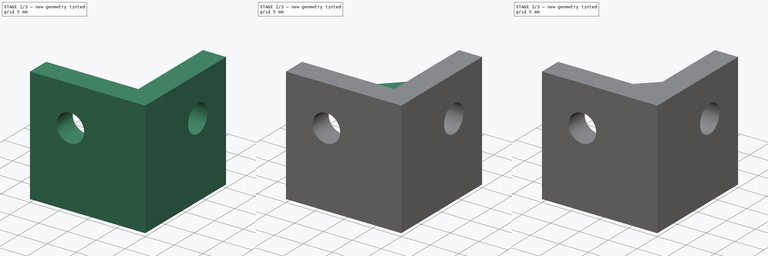
[diagram: build sequence overview — one tinted view per stage of 3, left to right]
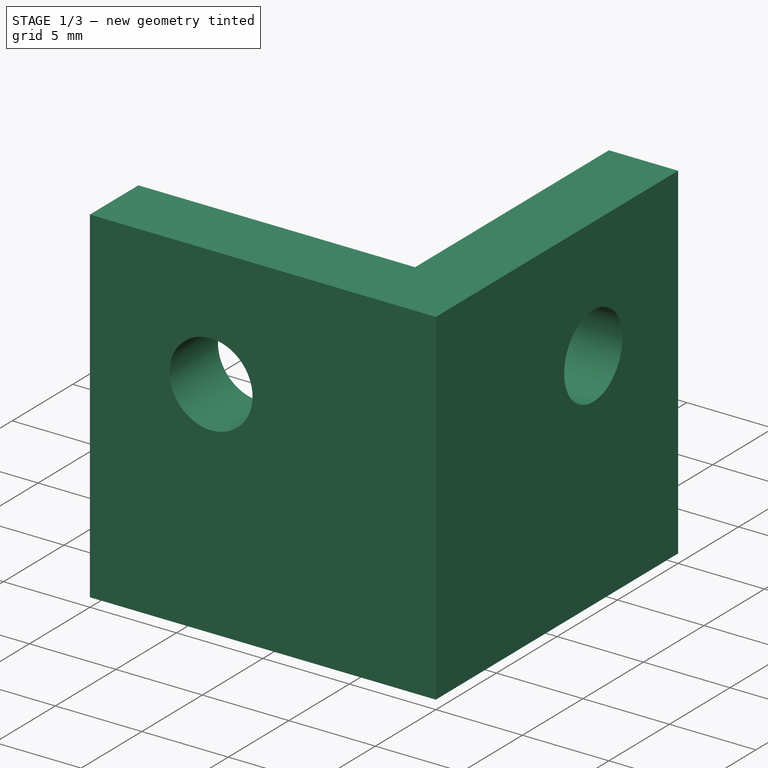
[diagram: stage 1 of 3 — iso view after this stage's code; geometry added in this stage tinted green]
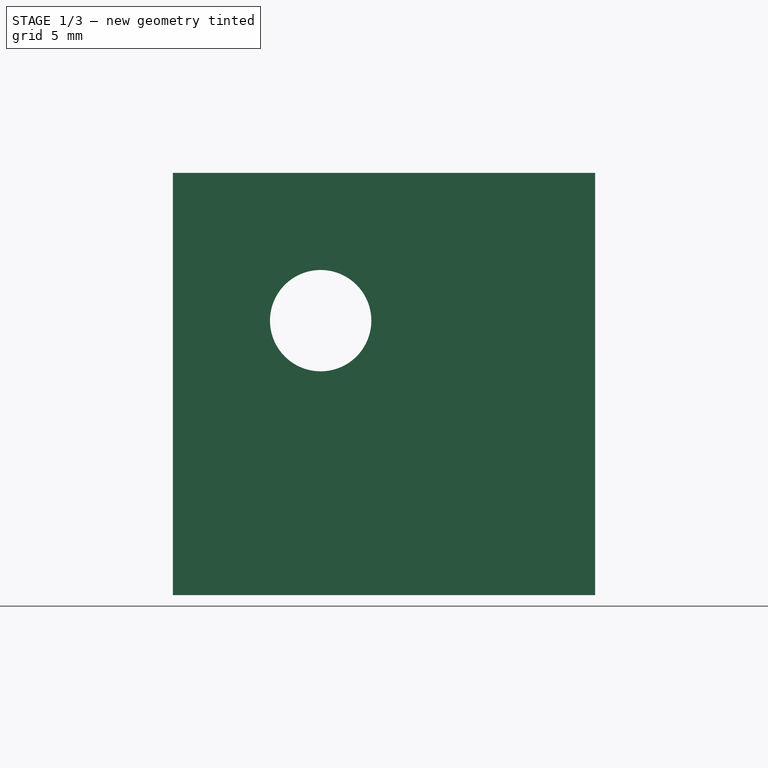
[diagram: stage 1 of 3 — front view after this stage's code; geometry added in this stage tinted green]
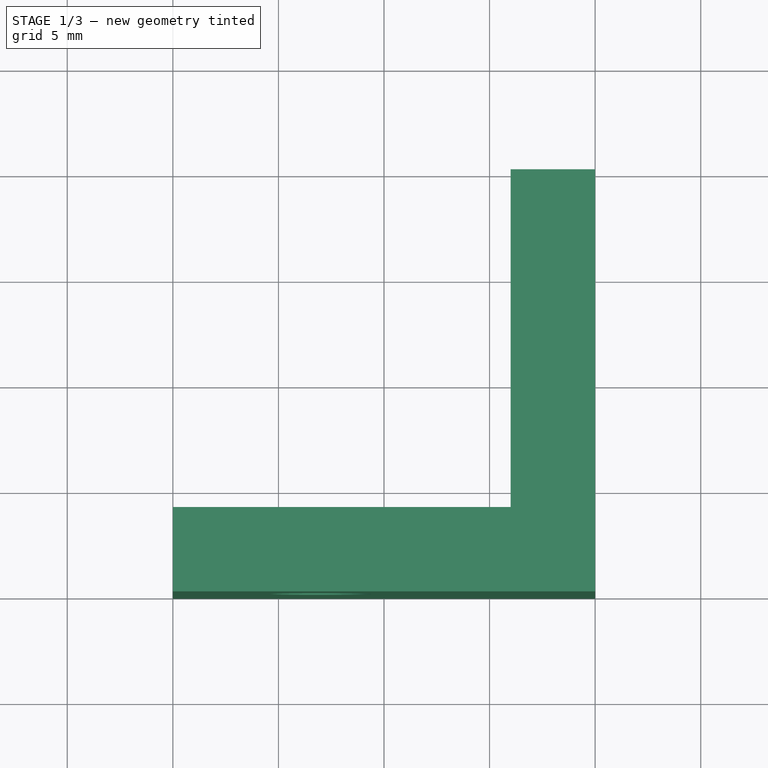
[diagram: stage 1 of 3 — top view after this stage's code; geometry added in this stage tinted green]
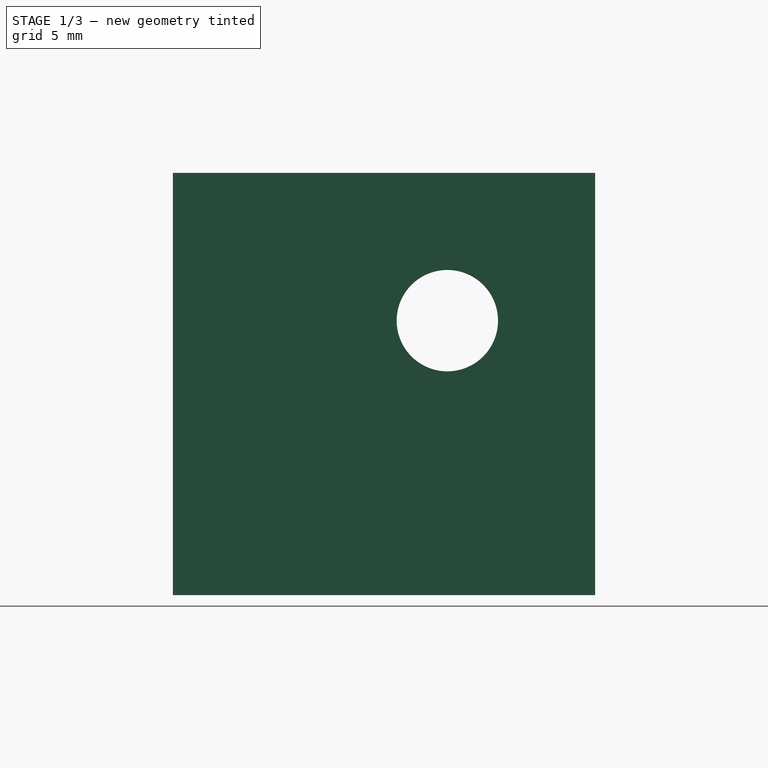
[diagram: stage 1 of 3 — right view after this stage's code; geometry added in this stage tinted green]
FCSTD DOCUMENT  (FreeCAD 0.16R6706 (Git))
Label: Cantoneira Quina
License: All rights reserved
LicenseURL: http://en.wikipedia.org/wiki/All_rights_reserved
objects: Sketcher::SketchObject×3, PartDesign::Pad×3, PartDesign::Chamfer×3, Part::MultiFuse×1
note: 13 computed .brp shape members not serialized (recipe doc carries the construction recipe); baked Part::Feature solids carry a one-line shape summary decoded from their .brp

FEATURE [Sketcher::SketchObject] Sketch001  label="Base001"
  Placement = pos=(0,4,0) rot=(1,0,0;1.5708rad)
  sketch-geometry (5):
    g0: LineSegment StartX=-20 StartY=20 StartZ=0 EndX=0 EndY=20 EndZ=0
    g1: LineSegment StartX=0 StartY=20 StartZ=0 EndX=0 EndY=0 EndZ=0
    g2: LineSegment StartX=0 StartY=0 StartZ=0 EndX=-20 EndY=0 EndZ=0
    g3: LineSegment StartX=-20 StartY=0 StartZ=0 EndX=-20 EndY=20 EndZ=0
    g4: Circle CenterX=-13 CenterY=13 CenterZ=0 NormalX=0 NormalY=0 NormalZ=1 Radius=2.4
  constraints (14):
    c: Coincident(g0,g1)
    c: Coincident(g1,g2)
    c: Coincident(g2,g3)
    c: Horizontal(g2)
    c: Horizontal(g0)
    c: Vertical(g1)
    c: Vertical(g3)
    c: DistanceX(g2,g2) = 20
    c: Equal(g2,g1)
    c: Radius(g4) = 2.4
    c: Coincident(g1,g-1)
    c: Coincident(g3,g0)
    c: DistanceY(g4,g0) = 7
    c: DistanceX(g0,g4) = 7
FEATURE [PartDesign::Pad] Pad001
  Length = 4
  Length2 = 100
  Placement = pos=(0,4,0) rot=(1,0,0;1.5708rad)
  Sketch = -> Sketch001
  Type = 0
FEATURE [Sketcher::SketchObject] Sketch002  label="Base002"
  Placement = pos=(-4,0,0) rot=(0.57735,0.57735,0.57735;2.0944rad)
  sketch-geometry (5):
    g0: LineSegment StartX=0 StartY=20 StartZ=0 EndX=20 EndY=20 EndZ=0
    g1: LineSegment StartX=20 StartY=20 StartZ=0 EndX=20 EndY=0 EndZ=0
    g2: LineSegment StartX=20 StartY=0 StartZ=0 EndX=0 EndY=0 EndZ=0
    g3: LineSegment StartX=0 StartY=0 StartZ=0 EndX=0 EndY=20 EndZ=0
    g4: Circle CenterX=13 CenterY=13 CenterZ=0 NormalX=0 NormalY=0 NormalZ=1 Radius=2.4
  constraints (14):
    c: Coincident(g0,g1)
    c: Coincident(g1,g2)
    c: Coincident(g2,g3)
    c: Horizontal(g2)
    c: Horizontal(g0)
    c: Vertical(g1)
    c: Vertical(g3)
    c: DistanceX(g2,g2) = 20
    c: Equal(g2,g1)
    c: Radius(g4) = 2.4
    c: Coincident(g3,g0)
    c: DistanceY(g4,g0) = 7
    c: DistanceX(g4,g0) = 7
    c: Coincident(g2,g-1)
FEATURE [PartDesign::Pad] Pad002
  Length = 4
  Length2 = 100
  Placement = pos=(-4,0,0) rot=(0.57735,0.57735,0.57735;2.0944rad)
  Sketch = -> Sketch002
  Type = 0
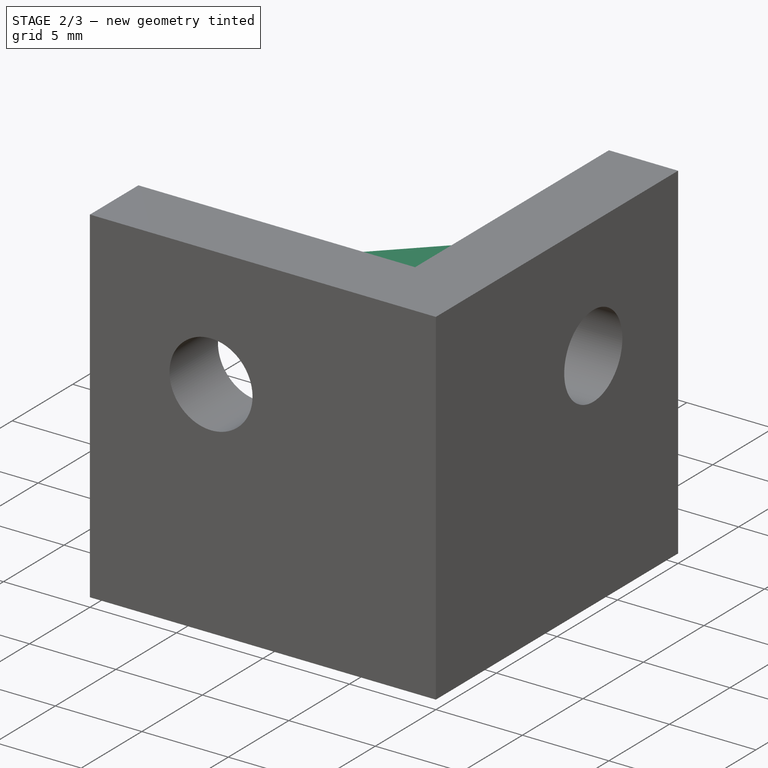
[diagram: stage 2 of 3 — iso view after this stage's code; geometry added in this stage tinted green]
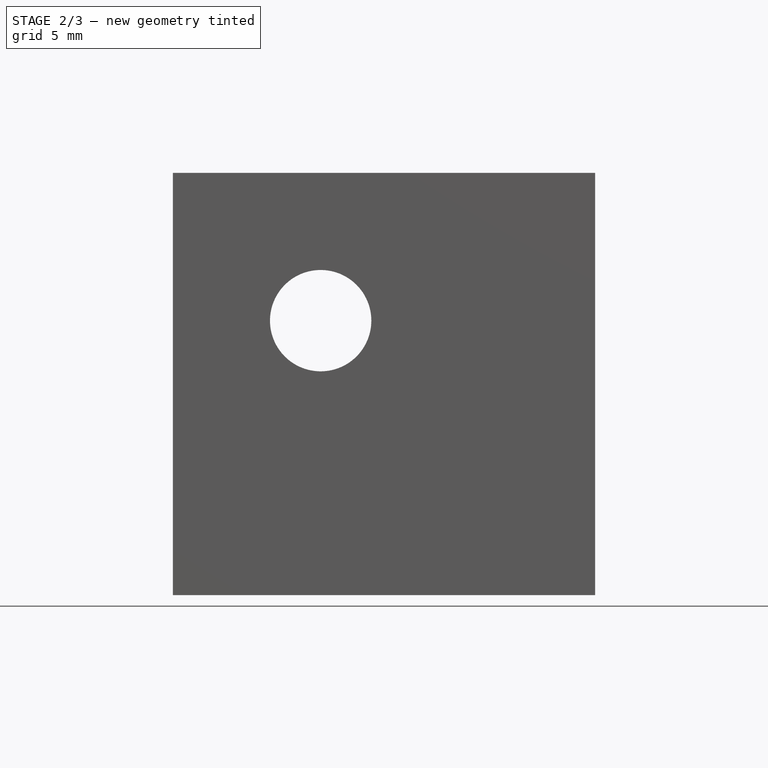
[diagram: stage 2 of 3 — front view after this stage's code; geometry added in this stage tinted green]
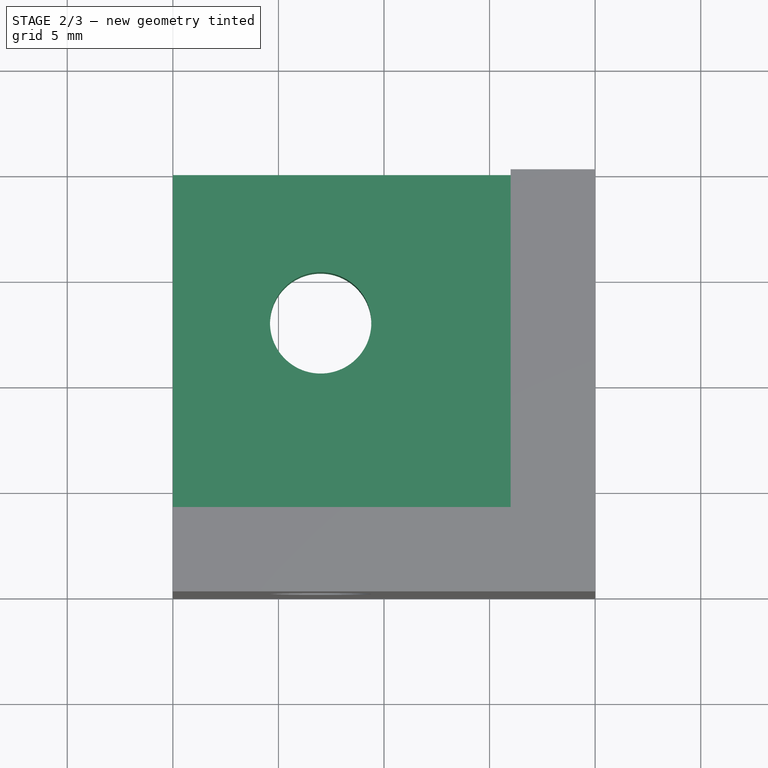
[diagram: stage 2 of 3 — top view after this stage's code; geometry added in this stage tinted green]
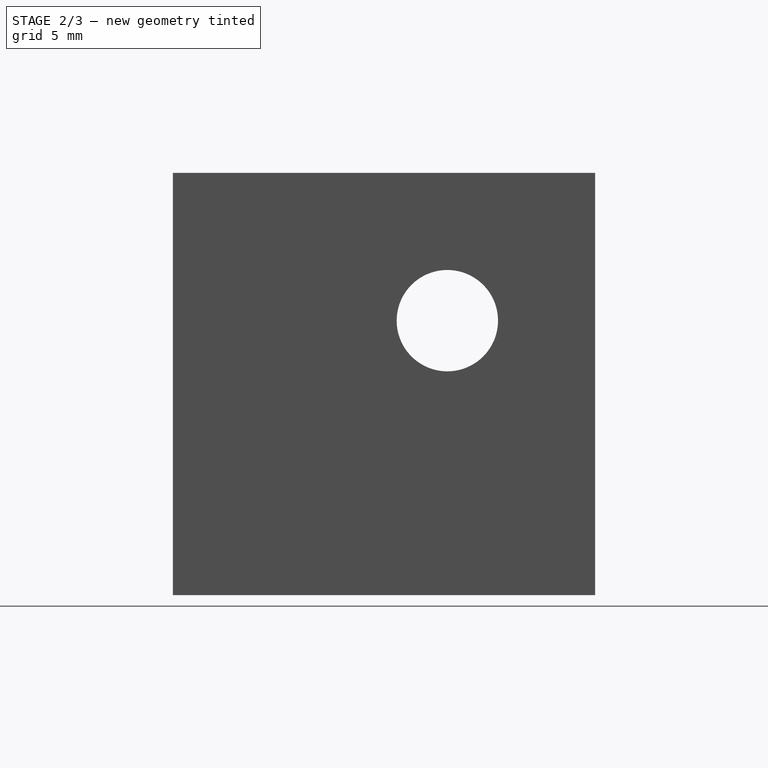
[diagram: stage 2 of 3 — right view after this stage's code; geometry added in this stage tinted green]
FEATURE [Sketcher::SketchObject] Sketch  label="Base"
  sketch-geometry (5):
    g0: LineSegment StartX=-20 StartY=20 StartZ=0 EndX=0 EndY=20 EndZ=0
    g1: LineSegment StartX=0 StartY=20 StartZ=0 EndX=0 EndY=0 EndZ=0
    g2: LineSegment StartX=0 StartY=0 StartZ=0 EndX=-20 EndY=0 EndZ=0
    g3: LineSegment StartX=-20 StartY=0 StartZ=0 EndX=-20 EndY=20 EndZ=0
    g4: Circle CenterX=-13 CenterY=13 CenterZ=0 NormalX=0 NormalY=0 NormalZ=1 Radius=2.4
  constraints (15):
    c: Coincident(g0,g1)
    c: Coincident(g1,g2)
    c: Coincident(g2,g3)
    c: Horizontal(g2)
    c: Horizontal(g0)
    c: Vertical(g1)
    c: Vertical(g3)
    c: DistanceX(g2,g2) = 20
    c: Equal(g2,g1)
    c: Radius(g4) = 2.4
    c: Coincident(g1,g-1)
    c: Coincident(g3,g0)
    c: DistanceY(g4,g0) = 7
    c: DistanceX(g0,g4) = 7
    c: DistanceY(g2,g4) = 13
FEATURE [PartDesign::Pad] Pad
  Length = 4
  Length2 = 100
  Sketch = -> Sketch
  Type = 0
FEATURE [Part::MultiFuse] Fusion
  Shapes = -> [Pad,Pad001,Pad002]
FEATURE [PartDesign::Chamfer] Chamfer
  Base = -> Fusion [Edge7]
  Size = 3
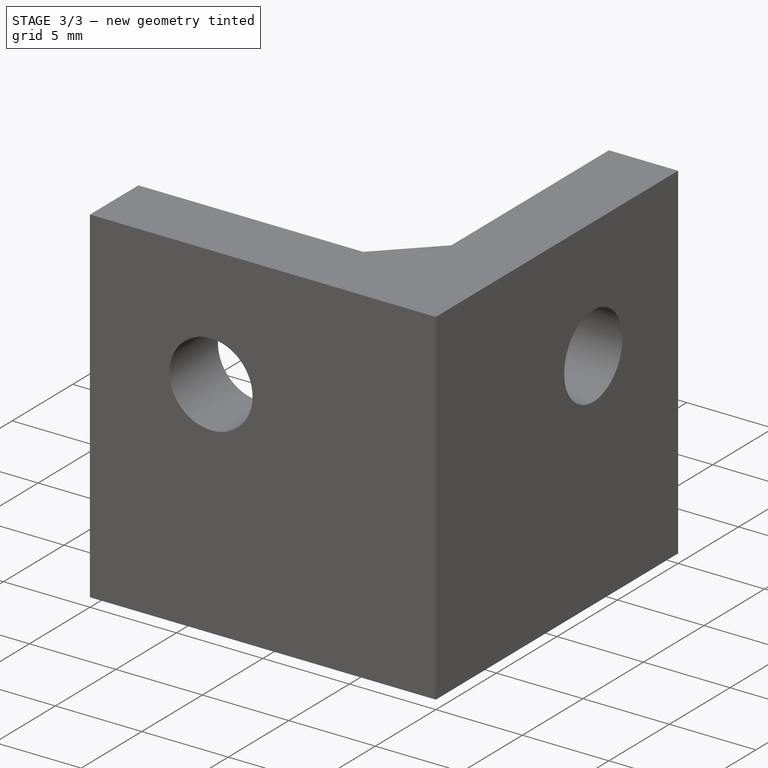
[diagram: stage 3 of 3 — iso view after this stage's code; geometry added in this stage tinted green]
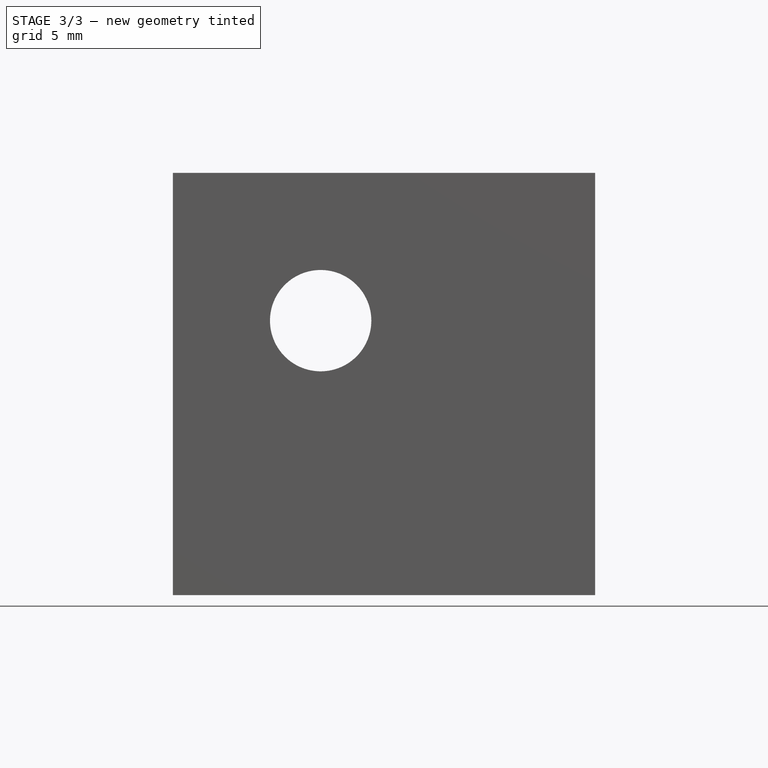
[diagram: stage 3 of 3 — front view after this stage's code; geometry added in this stage tinted green]
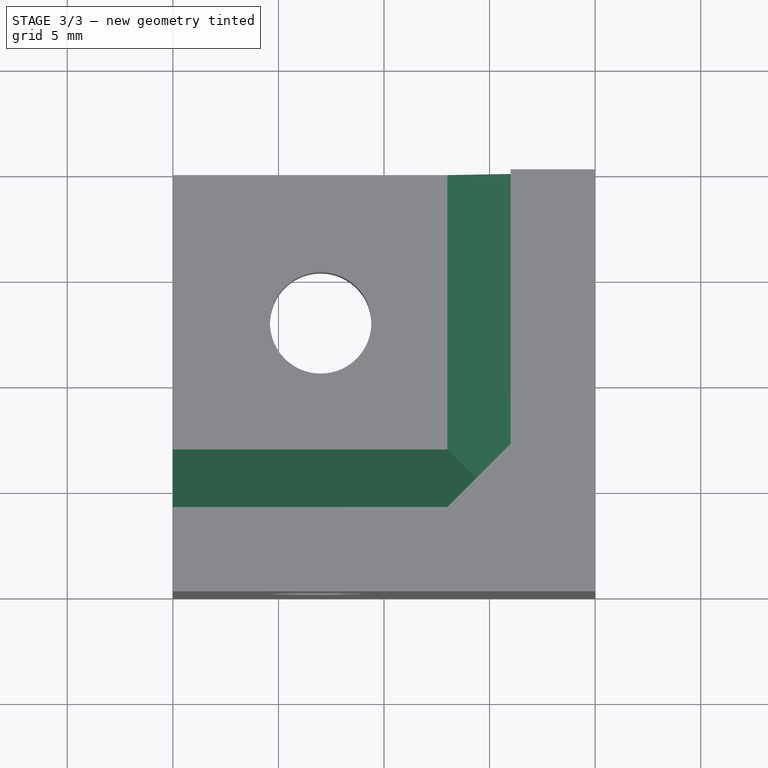
[diagram: stage 3 of 3 — top view after this stage's code; geometry added in this stage tinted green]
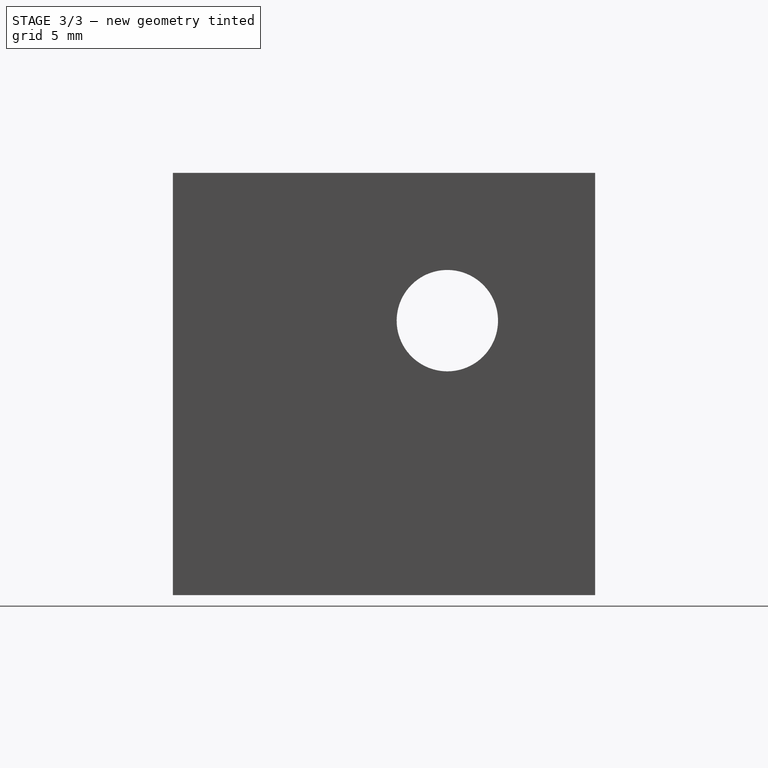
[diagram: stage 3 of 3 — right view after this stage's code; geometry added in this stage tinted green]
FEATURE [PartDesign::Chamfer] Chamfer001
  Base = -> Chamfer [Edge16]
  Size = 3
FEATURE [PartDesign::Chamfer] Chamfer002
  Base = -> Chamfer001 [Edge17]
  Size = 3
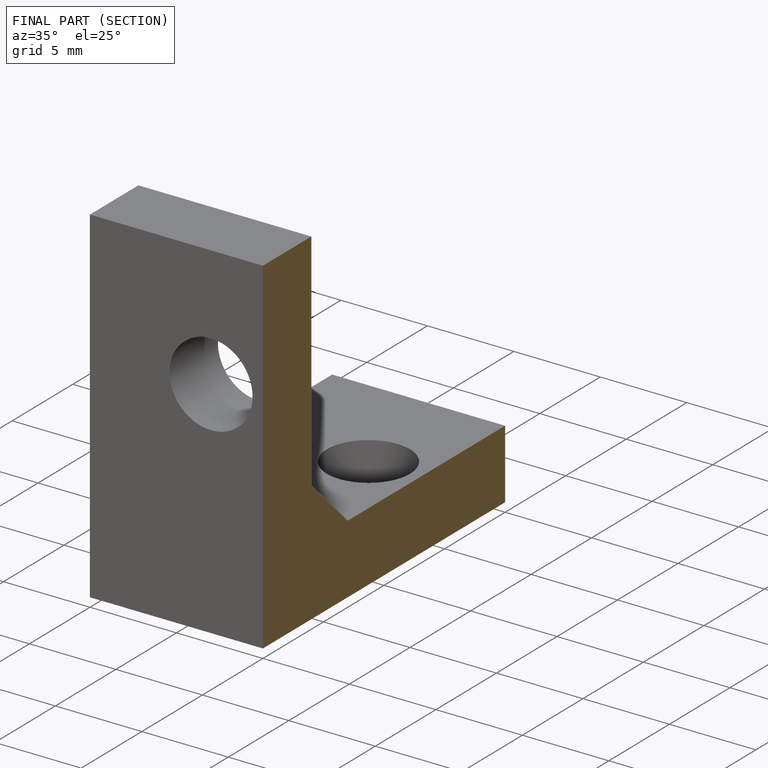
[diagram: finished part — half-section view (interior)]
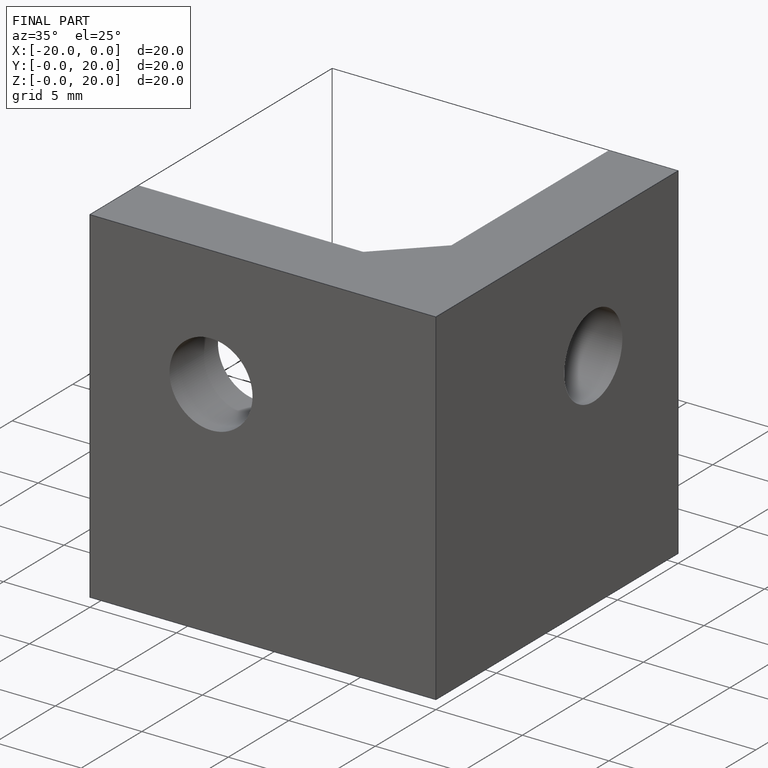
[diagram: finished part — iso view with bounding-box wireframe]
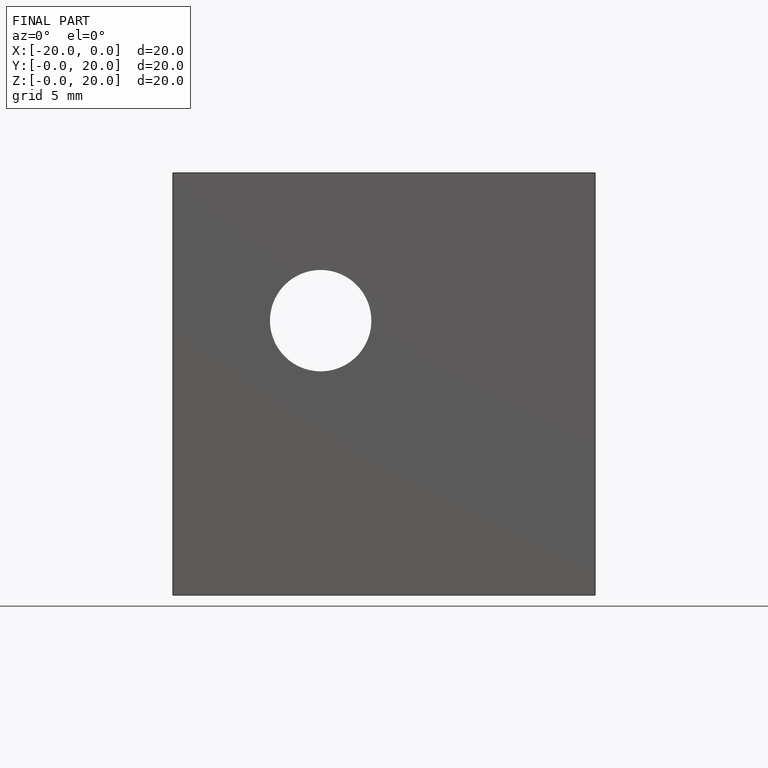
[diagram: finished part — front view with bounding-box wireframe]
